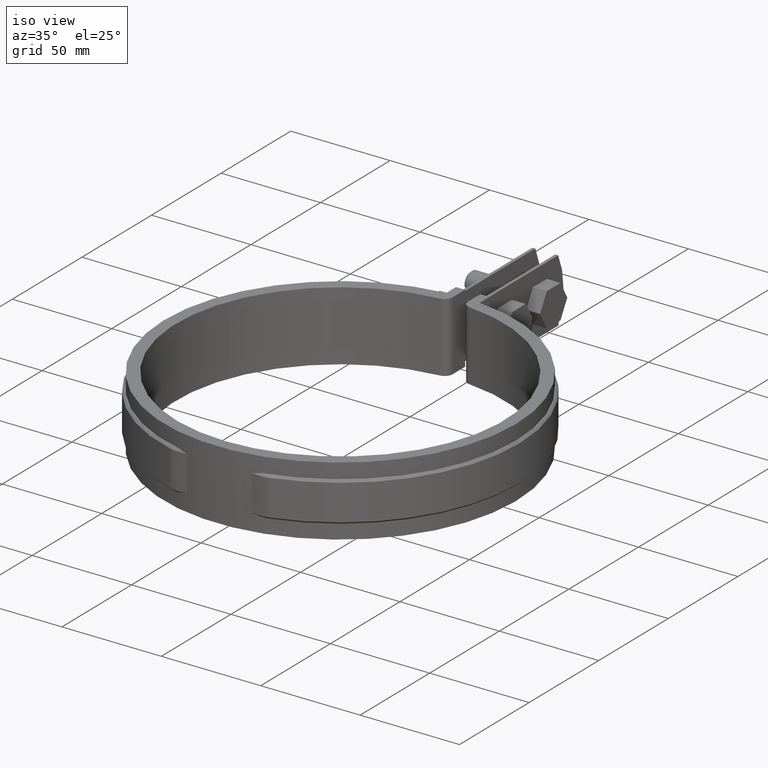
[diagram: clean part render]
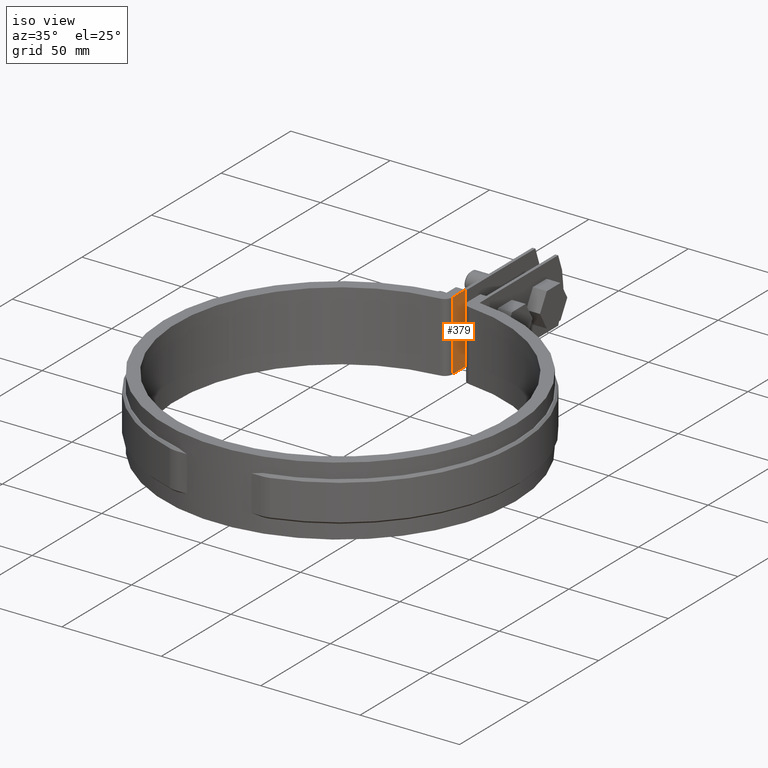
[diagram: same view with one face highlighted and labeled with its STEP entity id]
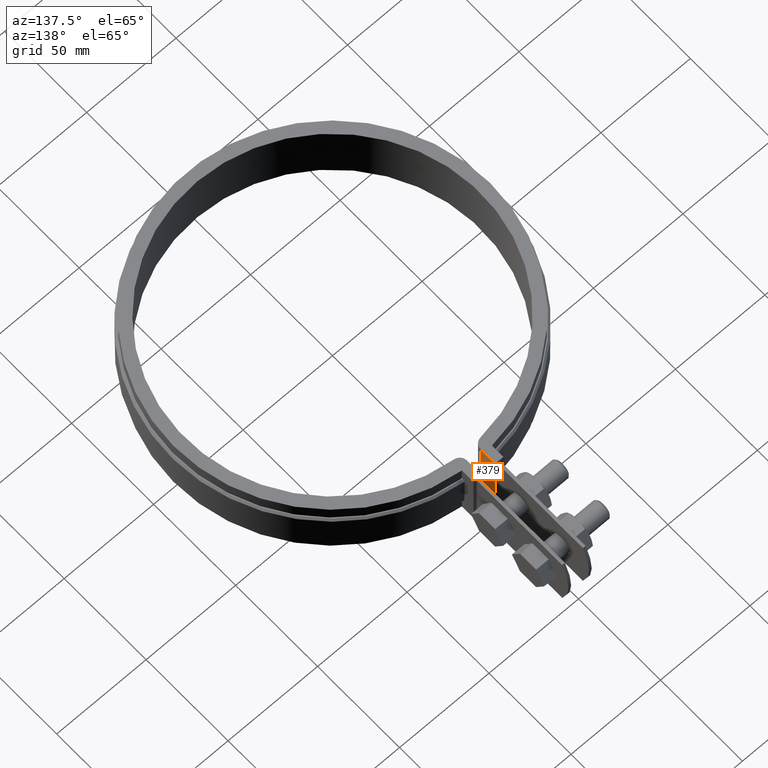
[diagram: same view with one face highlighted and labeled with its STEP entity id]
A machine part, iso view. The second image highlights one B-rep face of the part: STEP entity #379.
A second angle (auxiliary view) of the same face is appended — the face is thin or edge-on in the first view.
In plain terms, the highlighted planar face has unit normal (1, -0, 0).
Its self-contained STEP definition (entity closure, byte-faithful):
#379 = ADVANCED_FACE( '', ( #620 ), #621, .T. );
#620 = FACE_OUTER_BOUND( '', #1333, .T. );
#621 = PLANE( '', #1334 );
#1333 = EDGE_LOOP( '', ( #3141, #3142, #3143, #3144 ) );
#1334 = AXIS2_PLACEMENT_3D( '', #3145, #3146, #3147 );
#3141 = ORIENTED_EDGE( '', *, *, #4769, .F. );
#3142 = ORIENTED_EDGE( '', *, *, #4770, .F. );
#3143 = ORIENTED_EDGE( '', *, *, #4771, .T. );
#3144 = ORIENTED_EDGE( '', *, *, #4762, .T. );
#3145 = CARTESIAN_POINT( '', ( -3.79999999999999, 86.1476058866409, -33.5000000000000 ) );
#3146 = DIRECTION( '', ( 1.00000000000000, -6.10365667473321E-017, 0.000000000000000 ) );
#3147 = DIRECTION( '', ( -6.10365667473321E-017, -1.00000000000000, 0.000000000000000 ) );
#4762 = EDGE_CURVE( '', #5255, #5252, #5256, .T. );
#4769 = EDGE_CURVE( '', #5268, #5252, #5269, .T. );
#4770 = EDGE_CURVE( '', #5270, #5268, #5271, .T. );
#4771 = EDGE_CURVE( '', #5270, #5255, #5272, .T. );
#5252 = VERTEX_POINT( '', #7028 );
#5255 = VERTEX_POINT( '', #7032 );
#5256 = LINE( '', #7033, #7034 );
#5268 = VERTEX_POINT( '', #7052 );
#5269 = LINE( '', #7053, #7054 );
#5270 = VERTEX_POINT( '', #7055 );
#5271 = LINE( '', #7056, #7057 );
#5272 = LINE( '', #7058, #7059 );
#7028 = CARTESIAN_POINT( '', ( -3.80000000000000, 95.1000000000000, 1.50000000000000 ) );
#7032 = CARTESIAN_POINT( '', ( -3.80000000000000, 95.1000000000000, -33.5000000000000 ) );
#7033 = CARTESIAN_POINT( '', ( -3.80000000000000, 95.1000000000000, -33.5000000000000 ) );
#7034 = VECTOR( '', #8834, 1000.00000000000 );
#7052 = CARTESIAN_POINT( '', ( -3.79999999999999, 86.1476058866409, 1.50000000000000 ) );
#7053 = CARTESIAN_POINT( '', ( -3.79999999999999, 86.1476058866409, 1.50000000000000 ) );
#7054 = VECTOR( '', #8841, 1000.00000000000 );
#7055 = CARTESIAN_POINT( '', ( -3.79999999999999, 86.1476058866409, -33.5000000000000 ) );
#7056 = CARTESIAN_POINT( '', ( -3.79999999999999, 86.1476058866409, -33.5000000000000 ) );
#7057 = VECTOR( '', #8842, 1000.00000000000 );
#7058 = CARTESIAN_POINT( '', ( -3.79999999999999, 86.1476058866409, -33.5000000000000 ) );
#7059 = VECTOR( '', #8843, 1000.00000000000 );
#8834 = DIRECTION( '', ( 0.000000000000000, 0.000000000000000, 1.00000000000000 ) );
#8841 = DIRECTION( '', ( 6.10365667473321E-017, 1.00000000000000, 0.000000000000000 ) );
#8842 = DIRECTION( '', ( 0.000000000000000, 0.000000000000000, 1.00000000000000 ) );
#8843 = DIRECTION( '', ( 6.10365667473321E-017, 1.00000000000000, 0.000000000000000 ) );